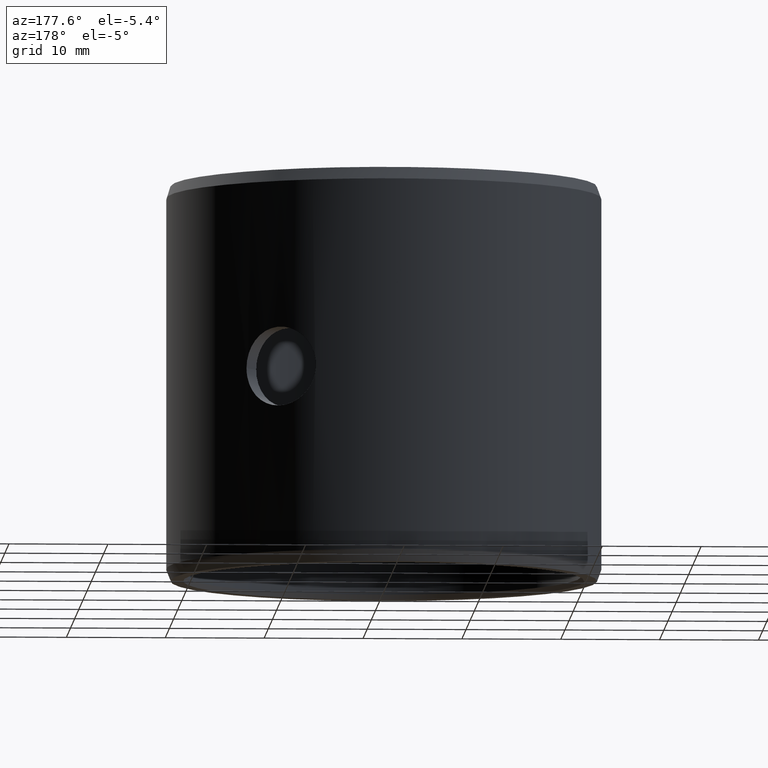
[diagram: clean part render]
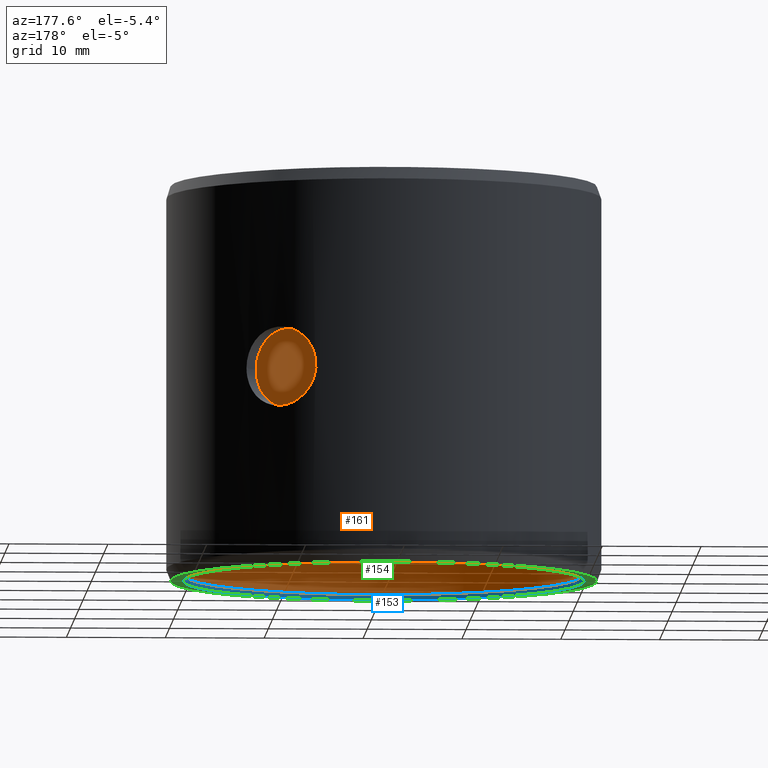
[diagram: same view with three faces highlighted in distinct colors, each labeled with its STEP entity id]
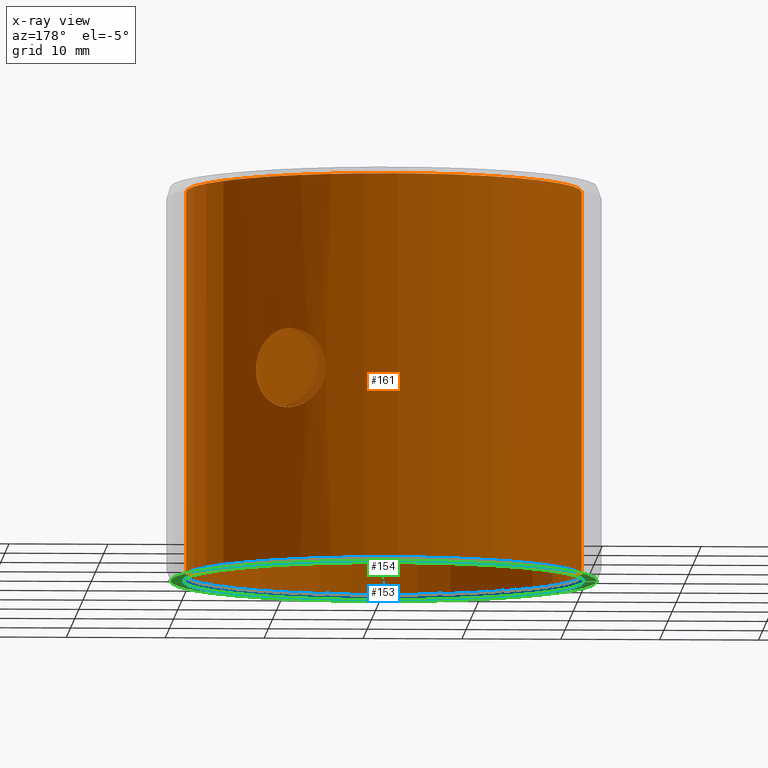
[diagram: x-ray of the same camera — body ghosted, the three highlighted faces saturated]
A machine part, auxiliary view with three faces highlighted in distinct colors.
The next image is the same camera in x-ray (body ghosted, the three faces saturated) — at least one of them is partly hidden behind the body in this view.
Their STEP definitions:

[orange] entity #161 — the highlighted cylindrical surface (partial cylindrical patch) has radius 20 mm, axis along (-0, 0, -1).
#161=ADVANCED_FACE('',(#182,#183),#184,.F.);
#182=FACE_OUTER_BOUND('',#208,.T.);
#183=FACE_BOUND('',#209,.T.);
#184=CYLINDRICAL_SURFACE('',#210,0.02);
#208=EDGE_LOOP('',(#281,#282,#283,#284));
#209=EDGE_LOOP('',(#285));
#210=AXIS2_PLACEMENT_3D('',#286,#287,#288);
#281=ORIENTED_EDGE('',*,*,#304,.T.);
#282=ORIENTED_EDGE('',*,*,#322,.F.);
#283=ORIENTED_EDGE('',*,*,#319,.F.);
#284=ORIENTED_EDGE('',*,*,#325,.T.);
#285=ORIENTED_EDGE('',*,*,#326,.T.);
#286=CARTESIAN_POINT('',(-6.93889390390723E-018,-6.93889390390723E-018,0.0));
#287=DIRECTION('',(6.12323399573677E-017,0.0,-1.0));
#288=DIRECTION('',(-1.0,0.0,-6.12323399573677E-017));
#304=EDGE_CURVE('',#333,#331,#334,.T.);
#319=EDGE_CURVE('',#359,#360,#361,.T.);
#322=EDGE_CURVE('',#360,#331,#364,.T.);
#325=EDGE_CURVE('',#359,#333,#367,.T.);
#326=EDGE_CURVE('',#368,#368,#369,.T.);
#331=VERTEX_POINT('',#375);
#333=VERTEX_POINT('',#378);
#334=CIRCLE('',#379,0.02);
#359=VERTEX_POINT('',#413);
#360=VERTEX_POINT('',#414);
#361=CIRCLE('',#415,0.02);
#364=LINE('',#420,#421);
#367=LINE('',#426,#427);
#368=VERTEX_POINT('',#428);
#369=B_SPLINE_CURVE_WITH_KNOTS('',3,(#429,#430,#431,#432,#433,#434,#435,#436,#437,#438,#439,#440,#441,#442,#443,#444,#445,#446,#447,#448,#449,#450,#451,#452,#453,#454,#455,#456,#457,#458,#459,#460,#461,#462,#463,#464,#465,#466,#467,#468,#469,#470,#471,#472,#473,#474,#475,#476,#477,#478,#479,#480,#481,#482,#483,#484,#485,#486,#487,#488,#489,#490,#491,#492,#493,#494),.UNSPECIFIED.,.T.,.F.,(2,2,2,2,2,2,2,2,2,2,2,2,2,2,2,2,2,2,2,2,2,2,2,2,2,2,2,2,2,2,2,2,2,2,2),(-0.000783488712854397,0.0,0.000783488712854403,0.00156697742570881,0.00235046613856321,0.00313395485141761,0.00391744356427201,0.00470093227712641,0.00548442098998081,0.00626790970283521,0.00705139841568961,0.00783488712854401,0.00861837584139841,0.00940186455425281,0.0101853532671072,0.0109688419799616,0.011752330692816,0.0125358194056704,0.0133193081185248,0.0141027968313792,0.0148862855442336,0.015669774257088,0.0164532629699424,0.0172367516827968,0.0180202403956512,0.0188037291085056,0.01958721782136,0.0203707065342144,0.0211541952470688,0.0219376839599232,0.0227211726727776,0.023504661385632,0.0242881500984864,0.0250716388113408,0.0258551275241952),.UNSPECIFIED.);
#375=CARTESIAN_POINT('',(-6.93889390390723E-018,0.02,0.0005));
#378=CARTESIAN_POINT('',(0.000349048128745664,0.0199969539031278,0.0005));
#379=AXIS2_PLACEMENT_3D('',#566,#567,#568);
#413=CARTESIAN_POINT('',(0.000349048128745663,0.0199969539031278,0.0395));
#414=CARTESIAN_POINT('',(-8.67361737988404E-018,0.02,0.0395));
#415=AXIS2_PLACEMENT_3D('',#593,#594,#595);
#420=CARTESIAN_POINT('',(-8.67361737988404E-018,0.02,0.0395));
#421=VECTOR('',#598,1.0);
#426=CARTESIAN_POINT('',(0.000349048128745663,0.0199969539031278,0.0395));
#427=VECTOR('',#601,1.0);
#428=CARTESIAN_POINT('',(0.0147368277877588,-0.0135213130558368,0.02));
#429=CARTESIAN_POINT('',(0.0147368277877588,-0.0135213130558368,0.0202649768366606));
#430=CARTESIAN_POINT('',(0.0147368277877588,-0.0135213130558368,0.0197350231633394));
#431=CARTESIAN_POINT('',(0.0147548588185547,-0.0135017349604381,0.0194746115155811));
#432=CARTESIAN_POINT('',(0.0148248897886548,-0.0134248034790695,0.0189625019382956));
#433=CARTESIAN_POINT('',(0.0148777620439247,-0.0133664749548795,0.0187081043687347));
#434=CARTESIAN_POINT('',(0.015013660018012,-0.0132136470748472,0.0182240496829964));
#435=CARTESIAN_POINT('',(0.015096101316406,-0.0131198088128641,0.0179945749427164));
#436=CARTESIAN_POINT('',(0.0152875369807863,-0.0128962347723045,0.0175602861250295));
#437=CARTESIAN_POINT('',(0.0153972162432063,-0.0127655896196565,0.0173551958955521));
#438=CARTESIAN_POINT('',(0.01563180601329,-0.0124772267407629,0.0169872845563086));
#439=CARTESIAN_POINT('',(0.0157576702396287,-0.0123184483584925,0.0168219438816031));
#440=CARTESIAN_POINT('',(0.0160246708287192,-0.0119690545229321,0.016529492696028));
#441=CARTESIAN_POINT('',(0.0161631152024075,-0.0117818459578267,0.0164056508608759));
#442=CARTESIAN_POINT('',(0.0164425741265372,-0.0113885882932689,0.0162059254306111));
#443=CARTESIAN_POINT('',(0.0165856226508623,-0.011179622130052,0.0161287501269086));
#444=CARTESIAN_POINT('',(0.016869042553392,-0.0107471965190648,0.0160257250547623));
#445=CARTESIAN_POINT('',(0.0170073640447639,-0.0105270130755956,0.0160001556034499));
#446=CARTESIAN_POINT('',(0.017276887997938,-0.010078570193812,0.0159998457990094));
#447=CARTESIAN_POINT('',(0.0174092679568996,-0.00984801587480328,0.0160259744036255));
#448=CARTESIAN_POINT('',(0.0176565324375543,-0.00939749380138671,0.016128316406424));
#449=CARTESIAN_POINT('',(0.0177725068907729,-0.0091759022486153,0.0162040304964613));
#450=CARTESIAN_POINT('',(0.0179904432382571,-0.00874088870480353,0.0164049855142014));
#451=CARTESIAN_POINT('',(0.0180913225134225,-0.0085294446780273,0.016529925083976));
#452=CARTESIAN_POINT('',(0.0182726691939624,-0.00813369149453143,0.0168191086026926));
#453=CARTESIAN_POINT('',(0.0183545876534978,-0.00794634405053023,0.0169851821852114));
#454=CARTESIAN_POINT('',(0.0185005761833137,-0.00760026003402093,0.0173568814974547));
#455=CARTESIAN_POINT('',(0.0185631023485181,-0.00744532049031294,0.0175581064867447));
#456=CARTESIAN_POINT('',(0.0186704321776277,-0.00717192640129805,0.0179906117354856));
#457=CARTESIAN_POINT('',(0.0187155607881087,-0.00705253189640114,0.0182247654896944));
#458=CARTESIAN_POINT('',(0.0187865809005554,-0.00686110776988901,0.0187081663927967));
#459=CARTESIAN_POINT('',(0.0188128202513417,-0.00678826558198345,0.0189574781197062));
#460=CARTESIAN_POINT('',(0.0188481938548091,-0.00668942029120389,0.0194714901600617));
#461=CARTESIAN_POINT('',(0.0188570961112188,-0.00666407730027469,0.019736980832904));
#462=CARTESIAN_POINT('',(0.018857168437677,-0.00666387263720272,0.0202597645692136));
#463=CARTESIAN_POINT('',(0.0188486220073478,-0.00668821368918649,0.0205200351588204));
#464=CARTESIAN_POINT('',(0.018813264383158,-0.00678703449066663,0.0210382667522375));
#465=CARTESIAN_POINT('',(0.0187868153247065,-0.00686045681838141,0.0212896275802896));
#466=CARTESIAN_POINT('',(0.0187162312261579,-0.00705074368350564,0.0217712737932063));
#467=CARTESIAN_POINT('',(0.018671433426763,-0.00716933434941554,0.0220048699439007));
#468=CARTESIAN_POINT('',(0.0185635975078861,-0.00744410026725574,0.0224403751213335));
#469=CARTESIAN_POINT('',(0.0185010864351698,-0.00759897521072943,0.0226413493827257));
#470=CARTESIAN_POINT('',(0.0183564989111846,-0.00794188713459098,0.0230104137630827));
#471=CARTESIAN_POINT('',(0.0182736408044104,-0.00813151267936323,0.0231790990725448));
#472=CARTESIAN_POINT('',(0.0180922044484154,-0.00852757790348447,0.0234689090258068));
#473=CARTESIAN_POINT('',(0.0179930363675113,-0.0087355524379243,0.0235921136850152));
#474=CARTESIAN_POINT('',(0.0177751332248424,-0.00917081637355227,0.0237940454768979));
#475=CARTESIAN_POINT('',(0.0176576076474414,-0.00939544743905922,0.0238710012810527));
#476=CARTESIAN_POINT('',(0.0174113300170644,-0.00984434494763255,0.0239734063996025));
#477=CARTESIAN_POINT('',(0.0172807942253257,-0.0100719369153565,0.0239998136980198));
#478=CARTESIAN_POINT('',(0.0170087883789147,-0.010524774589808,0.0240001843328627));
#479=CARTESIAN_POINT('',(0.0168703380948992,-0.0107451157161726,0.0239744616152448));
#480=CARTESIAN_POINT('',(0.0165891637613913,-0.0111743216746203,0.0238728165112523));
#481=CARTESIAN_POINT('',(0.0164449149356746,-0.0113852324409273,0.023795543599876));
#482=CARTESIAN_POINT('',(0.0161641778756178,-0.0117804116473452,0.0235953100730238));
#483=CARTESIAN_POINT('',(0.0160269833724549,-0.0119659443173579,0.0234726500905113));
#484=CARTESIAN_POINT('',(0.0157609535243587,-0.0123142341796013,0.0231820344319109));
#485=CARTESIAN_POINT('',(0.0156328480205379,-0.012475920741666,0.0230141515675283));
#486=CARTESIAN_POINT('',(0.0153983193988574,-0.0127642585086773,0.0226467304740491));
#487=CARTESIAN_POINT('',(0.0152903304125845,-0.0128929415868406,0.0224455244518676));
#488=CARTESIAN_POINT('',(0.0150967773925083,-0.0131190494796209,0.0220074760042898));
#489=CARTESIAN_POINT('',(0.015014267159697,-0.0132129541228296,0.021777556689022));
#490=CARTESIAN_POINT('',(0.0148789076701209,-0.0133651966517059,0.0212965252760537));
#491=CARTESIAN_POINT('',(0.0148257632082183,-0.0134238414301546,0.0210427887486843));
#492=CARTESIAN_POINT('',(0.0147548634108766,-0.0135017324508548,0.0205265048407942));
#493=CARTESIAN_POINT('',(0.0147368277877588,-0.0135213130558368,0.0202649768366606));
#494=CARTESIAN_POINT('',(0.0147368277877588,-0.0135213130558368,0.0197350231633394));
#566=CARTESIAN_POINT('',(-6.93889390390723E-018,-6.93889390390723E-018,0.0005));
#567=DIRECTION('',(6.12323399573677E-017,0.0,-1.0));
#568=DIRECTION('',(-1.0,0.0,-6.12323399573677E-017));
#593=CARTESIAN_POINT('',(-8.67361737988404E-018,-6.93889390390723E-018,0.0395));
#594=DIRECTION('',(6.12323399573677E-017,0.0,-1.0));
#595=DIRECTION('',(-1.0,0.0,-6.12323399573677E-017));
#598=DIRECTION('',(4.44800891276104E-017,1.77920356510441E-016,-1.0));
#601=DIRECTION('',(4.75877789518398E-017,1.78185625468589E-016,-1.0));

[blue] entity #153 — the highlighted conical surface has half-angle 30 deg.
#153=ADVANCED_FACE('',(#166),#167,.F.);
#166=FACE_OUTER_BOUND('',#192,.T.);
#167=CONICAL_SURFACE('',#193,0.02,0.523598775598284);
#192=EDGE_LOOP('',(#217,#218,#219,#220));
#193=AXIS2_PLACEMENT_3D('',#221,#222,#223);
#217=ORIENTED_EDGE('',*,*,#302,.T.);
#218=ORIENTED_EDGE('',*,*,#303,.F.);
#219=ORIENTED_EDGE('',*,*,#304,.F.);
#220=ORIENTED_EDGE('',*,*,#305,.T.);
#221=CARTESIAN_POINT('',(-6.93889390390723E-018,-6.93889390390723E-018,0.0005));
#222=DIRECTION('',(6.12323399573677E-017,-0.0,-1.0));
#223=DIRECTION('',(-1.0,0.0,-6.12323399573677E-017));
#302=EDGE_CURVE('',#328,#329,#330,.T.);
#303=EDGE_CURVE('',#331,#329,#332,.T.);
#304=EDGE_CURVE('',#333,#331,#334,.T.);
#305=EDGE_CURVE('',#333,#328,#335,.T.);
#328=VERTEX_POINT('',#372);
#329=VERTEX_POINT('',#373);
#330=CIRCLE('',#374,0.0202886751345948);
#331=VERTEX_POINT('',#375);
#332=LINE('',#376,#377);
#333=VERTEX_POINT('',#378);
#334=CIRCLE('',#379,0.02);
#335=LINE('',#380,#381);
#372=CARTESIAN_POINT('',(0.00035408620452295,0.0202855850711014,7.80623047589417E-019));
#373=CARTESIAN_POINT('',(-6.93889390390723E-018,0.0202886751345948,7.58941520739853E-019));
#374=AXIS2_PLACEMENT_3D('',#562,#563,#564);
#375=CARTESIAN_POINT('',(-6.93889390390723E-018,0.02,0.0005));
#376=CARTESIAN_POINT('',(-6.93889390390723E-018,0.02,0.0005));
#377=VECTOR('',#565,1.0);
#378=CARTESIAN_POINT('',(0.000349048128745664,0.0199969539031278,0.0005));
#379=AXIS2_PLACEMENT_3D('',#566,#567,#568);
#380=CARTESIAN_POINT('',(0.000349048128745664,0.0199969539031278,0.0005));
#381=VECTOR('',#569,1.0);
#562=CARTESIAN_POINT('',(-6.93889390390723E-018,-6.93889390390723E-018,7.58941520739853E-019));
#563=DIRECTION('',(6.12323399573677E-017,0.0,-1.0));
#564=DIRECTION('',(-1.0,0.0,-6.12323399573677E-017));
#565=DIRECTION('',(0.0,0.499999999999999,-0.866025403784439));
#566=CARTESIAN_POINT('',(-6.93889390390723E-018,-6.93889390390723E-018,0.0005));
#567=DIRECTION('',(6.12323399573677E-017,0.0,-1.0));
#568=DIRECTION('',(-1.0,0.0,-6.12323399573677E-017));
#569=DIRECTION('',(0.00872620321864172,0.499923847578192,-0.866025403784441));

[green] entity #154 — the highlighted planar face has unit normal (-0, 0, -1).
#154=ADVANCED_FACE('',(#168),#169,.T.);
#168=FACE_OUTER_BOUND('',#194,.T.);
#169=PLANE('',#195);
#194=EDGE_LOOP('',(#224,#225,#226,#227));
#195=AXIS2_PLACEMENT_3D('',#228,#229,#230);
#224=ORIENTED_EDGE('',*,*,#306,.T.);
#225=ORIENTED_EDGE('',*,*,#307,.F.);
#226=ORIENTED_EDGE('',*,*,#302,.F.);
#227=ORIENTED_EDGE('',*,*,#308,.T.);
#228=CARTESIAN_POINT('',(0.00035408620452295,0.0202855850711014,8.34833156213692E-019));
#229=DIRECTION('',(6.12323399573677E-017,0.0,-1.0));
#230=DIRECTION('',(-1.0,0.0,-6.12323399573677E-017));
#302=EDGE_CURVE('',#328,#329,#330,.T.);
#306=EDGE_CURVE('',#336,#337,#338,.T.);
#307=EDGE_CURVE('',#329,#337,#339,.T.);
#308=EDGE_CURVE('',#328,#336,#340,.T.);
#328=VERTEX_POINT('',#372);
#329=VERTEX_POINT('',#373);
#330=CIRCLE('',#374,0.0202886751345948);
#336=VERTEX_POINT('',#382);
#337=VERTEX_POINT('',#383);
#338=CIRCLE('',#384,0.0215632357188805);
#339=LINE('',#385,#386);
#340=LINE('',#387,#388);
#372=CARTESIAN_POINT('',(0.00035408620452295,0.0202855850711014,7.80623047589417E-019));
#373=CARTESIAN_POINT('',(-6.93889390390723E-018,0.0202886751345948,7.58941520739853E-019));
#374=AXIS2_PLACEMENT_3D('',#562,#563,#564);
#382=CARTESIAN_POINT('',(0.000376330353868847,0.0215599515336367,8.90405326152778E-019));
#383=CARTESIAN_POINT('',(-6.93889390390723E-018,0.0215632357188805,8.67361737988404E-019));
#384=AXIS2_PLACEMENT_3D('',#570,#571,#572);
#385=CARTESIAN_POINT('',(-6.93889390390723E-018,0.0202886751345948,8.03470082629716E-019));
#386=VECTOR('',#573,1.0);
#387=CARTESIAN_POINT('',(0.00035408620452295,0.0202855850711014,8.2515160947928E-019));
#388=VECTOR('',#574,1.0);
#562=CARTESIAN_POINT('',(-6.93889390390723E-018,-6.93889390390723E-018,7.58941520739853E-019));
#563=DIRECTION('',(6.12323399573677E-017,0.0,-1.0));
#564=DIRECTION('',(-1.0,0.0,-6.12323399573677E-017));
#570=CARTESIAN_POINT('',(-6.93889390390723E-018,-6.93889390390723E-018,8.67361737988404E-019));
#571=DIRECTION('',(6.12323399573677E-017,0.0,-1.0));
#572=DIRECTION('',(-1.0,0.0,-6.12323399573677E-017));
#573=DIRECTION('',(0.0,1.0,5.01283784752311E-017));
#574=DIRECTION('',(0.0174524064372836,0.999847695156391,5.1197030159273E-017));